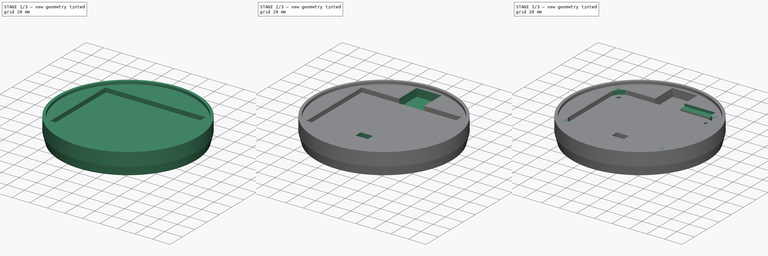
[diagram: build sequence overview — one tinted view per stage of 3, left to right]
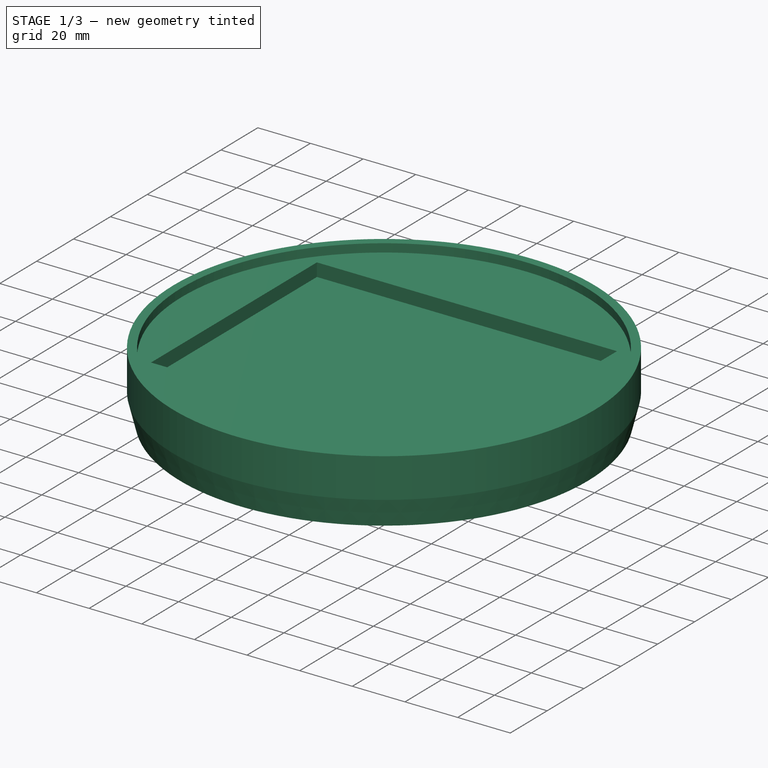
[diagram: stage 1 of 3 — iso view after this stage's code; geometry added in this stage tinted green]
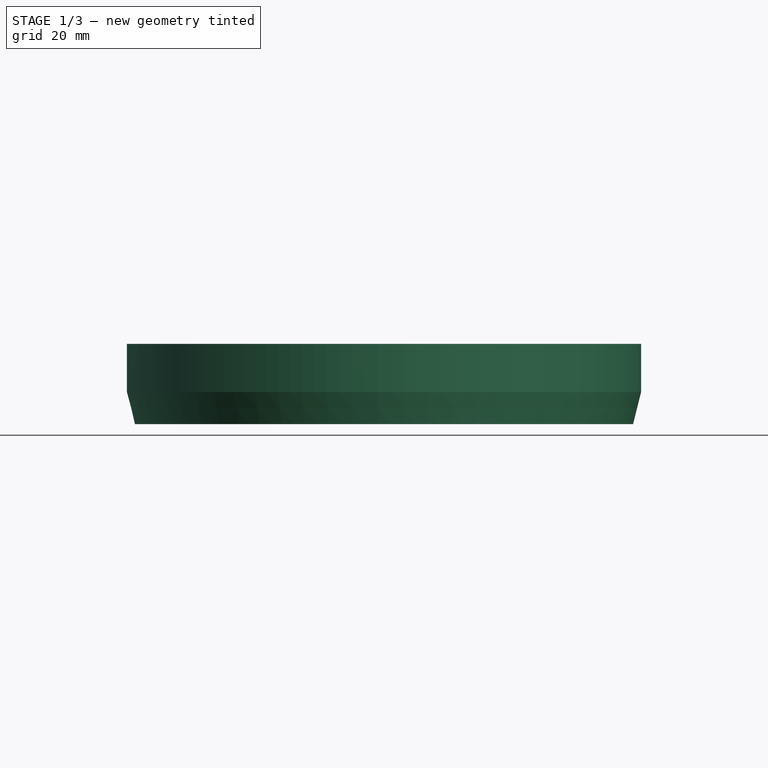
[diagram: stage 1 of 3 — front view after this stage's code; geometry added in this stage tinted green]
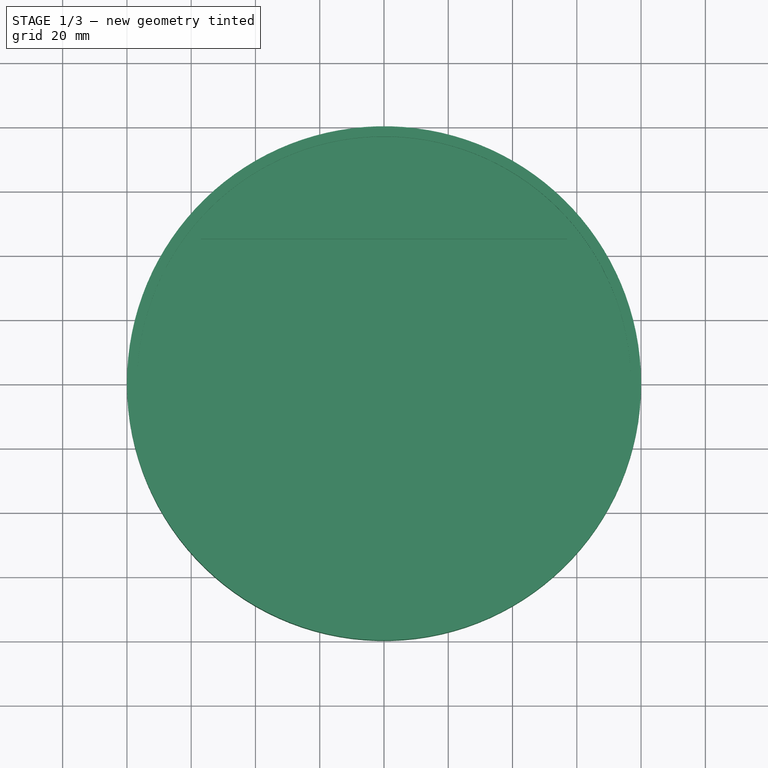
[diagram: stage 1 of 3 — top view after this stage's code; geometry added in this stage tinted green]
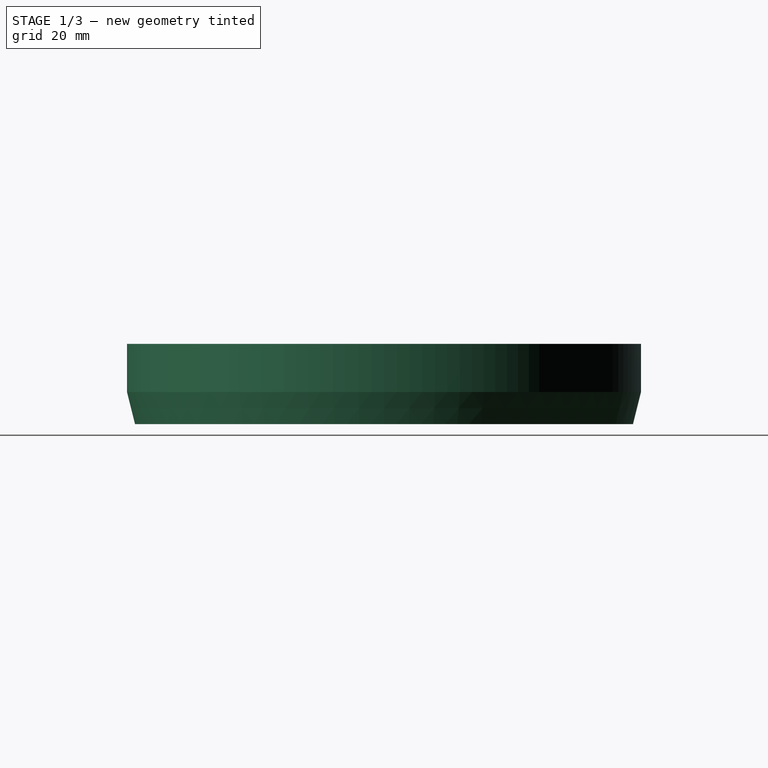
[diagram: stage 1 of 3 — right view after this stage's code; geometry added in this stage tinted green]
FCSTD DOCUMENT  (FreeCAD 0.19R24291 (Git))
Label: Buoy3DTop
License: All rights reserved
LicenseURL: http://en.wikipedia.org/wiki/All_rights_reserved
objects: Sketcher::SketchObject×7, PartDesign::Pocket×6, PartDesign::Revolution×1, PartDesign::Fillet×1, PartDesign::Body×1
note: 24 computed .brp shape members not serialized (recipe doc carries the construction recipe); baked Part::Feature solids carry a one-line shape summary decoded from their .brp

FEATURE [Sketcher::SketchObject] Sketch
  FullyConstrained = true
  MapMode = 5
  Placement = pos=(0,0,0) rot=(1,0,0;1.5708rad)
  Support = -> [XZ_Plane]
  sketch-geometry (8):
    g0: LineSegment StartX=0 StartY=5 StartZ=0 EndX=0 EndY=20 EndZ=0
    g1: LineSegment StartX=0 StartY=20 StartZ=0 EndX=80 EndY=20 EndZ=0
    g2: LineSegment StartX=80 StartY=20 StartZ=0 EndX=80 EndY=5 EndZ=0
    g3: LineSegment StartX=80 StartY=5 StartZ=0 EndX=77.5 EndY=-5 EndZ=0
    g4: LineSegment StartX=75.5 StartY=5 StartZ=0 EndX=0 EndY=5 EndZ=0
    g5: LineSegment StartX=75.5 StartY=0 StartZ=0 EndX=75.5 EndY=5 EndZ=0
    g6: LineSegment StartX=75.5 StartY=0 StartZ=0 EndX=75.5 EndY=-5 EndZ=0
    g7: LineSegment StartX=75.5 StartY=-5 StartZ=0 EndX=77.5 EndY=-5 EndZ=0
  constraints (24):
    c: PointOnObject(g0,g-2)
    c: PointOnObject(g0,g-2)
    c: Coincident(g0,g1)
    c: Horizontal(g1)
    c: Coincident(g1,g2)
    c: Vertical(g2)
    c: Coincident(g2,g3)
    c: Coincident(g4,g0)
    c: Horizontal(g4)
    c: DistanceX(g0,g1) = 80
    c: DistanceX(g5,g3) = 2
    c: Vertical(g5)
    c: Coincident(g4,g5)
    c: DistanceY(g5,g4) = 5
    c: DistanceY(g2,g1) = 15
    c: Coincident(g6,g5)
    c: Vertical(g6)
    c: Coincident(g7,g6)
    c: Horizontal(g7)
    c: Coincident(g3,g7)
    c: DistanceY(g-1,g5) = 0
    c: DistanceX(g3,g2) = 2.5
    c: DistanceY(g6,g5) = 5
    c: DistanceY(g5,g2) = 5
FEATURE [PartDesign::Revolution] Revolution
  Angle = 360
  Axis = (0,-2e-16,1)
  Base = (0,0,0)
  Placement = pos=(0,0,0) rot=(1,0,0;1.5708rad)
  Profile = -> Sketch
  ReferenceAxis = -> Sketch [V_Axis]
  Reversed = true
FEATURE [Sketcher::SketchObject] Sketch001
  FullyConstrained = true
  MapMode = 5
  Placement = pos=(0,-4.4e-15,20) rot=(0,0,1;3.14159rad)
  Support = -> [Revolution]
  sketch-geometry (1):
    g0: Circle CenterX=0 CenterY=0 CenterZ=0 NormalX=0 NormalY=0 NormalZ=1 AngleXU=0 Radius=76.835
  constraints (2):
    c: Coincident(g0,g-1)
    c: Radius(g0) = 76.835
FEATURE [PartDesign::Pocket] Pocket
  BaseFeature = -> Revolution
  Length = 3.175
  Length2 = 100
  Placement = pos=(0,0,0) rot=(1,0,0;1.5708rad)
  Profile = -> Sketch001
  Type = 0
FEATURE [Sketcher::SketchObject] Sketch002
  FullyConstrained = true
  MapMode = 5
  Placement = pos=(0,-3.6e-15,16.825) rot=(0,0,1;3.14159rad)
  Support = -> [Pocket]
  sketch-geometry (4):
    g0: LineSegment StartX=-57 StartY=45 StartZ=0 EndX=57 EndY=45 EndZ=0
    g1: LineSegment StartX=57 StartY=45 StartZ=0 EndX=57 EndY=-45 EndZ=0
    g2: LineSegment StartX=57 StartY=-45 StartZ=0 EndX=-57 EndY=-45 EndZ=0
    g3: LineSegment StartX=-57 StartY=-45 StartZ=0 EndX=-57 EndY=45 EndZ=0
  constraints (12):
    c: Horizontal(g0)
    c: Coincident(g0,g1)
    c: Vertical(g1)
    c: Coincident(g1,g2)
    c: Horizontal(g2)
    c: Coincident(g2,g3)
    c: Coincident(g3,g0)
    c: Vertical(g3)
    c: DistanceY(g1,g0) = 90
    c: DistanceX(g0,g0) = 114
    c: DistanceY(g1,g-1) = 45
    c: DistanceX(g-1,g0) = 57
FEATURE [PartDesign::Pocket] Pocket001
  BaseFeature = -> Pocket
  Length = 5
  Length2 = 100
  Placement = pos=(0,0,0) rot=(1,0,0;1.5708rad)
  Profile = -> Sketch002
  Type = 0
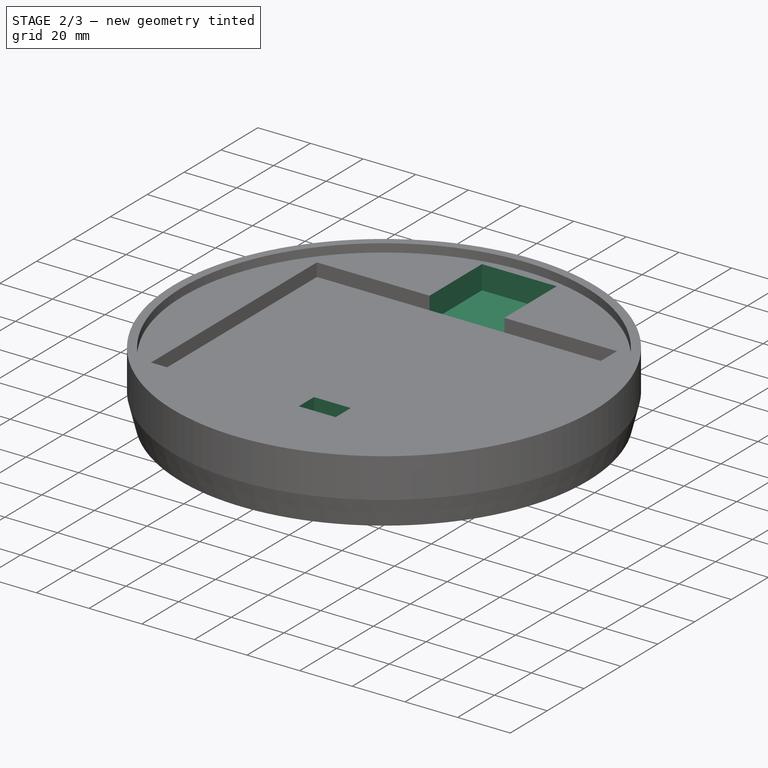
[diagram: stage 2 of 3 — iso view after this stage's code; geometry added in this stage tinted green]
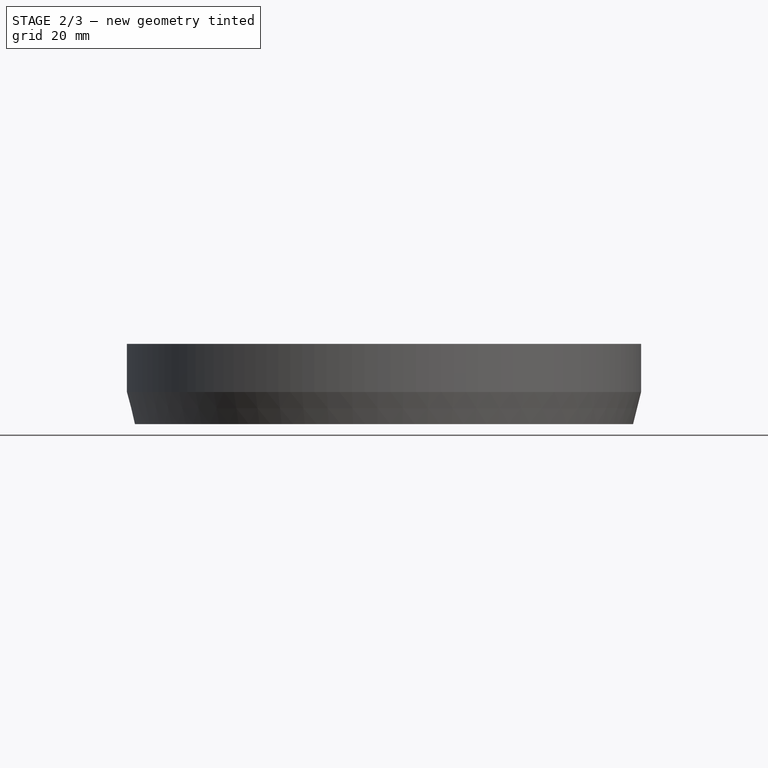
[diagram: stage 2 of 3 — front view after this stage's code; geometry added in this stage tinted green]
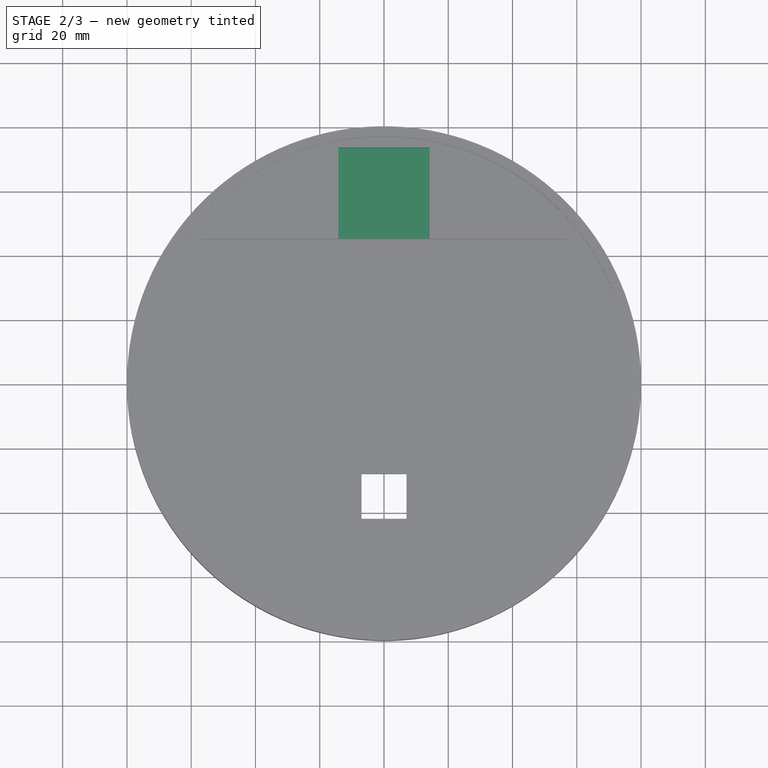
[diagram: stage 2 of 3 — top view after this stage's code; geometry added in this stage tinted green]
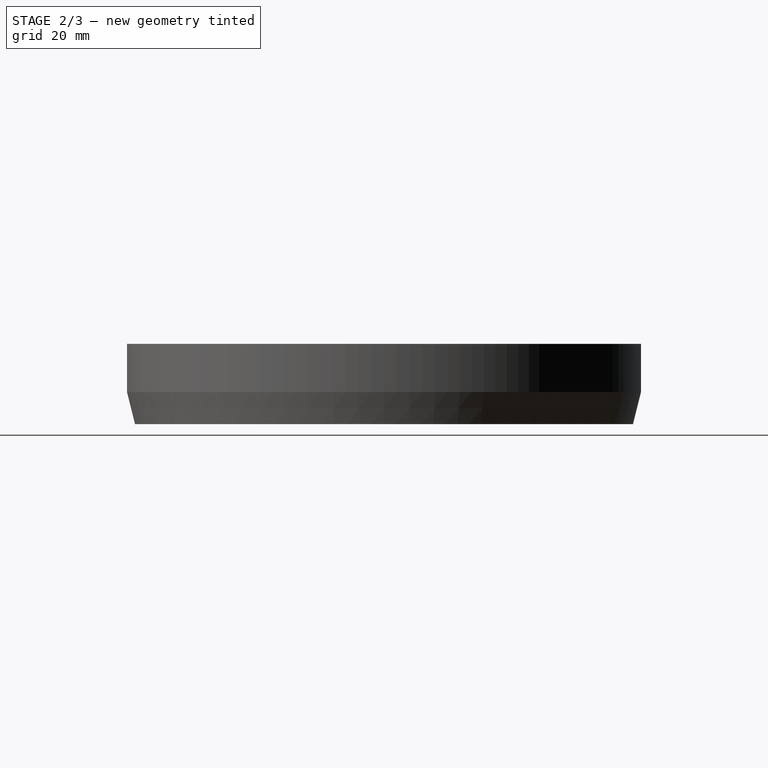
[diagram: stage 2 of 3 — right view after this stage's code; geometry added in this stage tinted green]
FEATURE [Sketcher::SketchObject] Sketch003
  FullyConstrained = true
  MapMode = 5
  Placement = pos=(0,-2.8e-15,11.825) rot=(0,0,1;3.14159rad)
  Support = -> [Pocket001]
  sketch-geometry (4):
    g0: LineSegment StartX=-7 StartY=42 StartZ=0 EndX=7 EndY=42 EndZ=0
    g1: LineSegment StartX=7 StartY=42 StartZ=0 EndX=7 EndY=28 EndZ=0
    g2: LineSegment StartX=7 StartY=28 StartZ=0 EndX=-7 EndY=28 EndZ=0
    g3: LineSegment StartX=-7 StartY=28 StartZ=0 EndX=-7 EndY=42 EndZ=0
  constraints (12):
    c: Coincident(g0,g1)
    c: Coincident(g1,g2)
    c: Coincident(g2,g3)
    c: Coincident(g3,g0)
    c: Horizontal(g0)
    c: Horizontal(g2)
    c: Vertical(g1)
    c: Vertical(g3)
    c: DistanceY(g-1,g0) = 42
    c: DistanceX(g2,g1) = 14
    c: DistanceY(g2,g0) = 14
    c: DistanceX(g-1,g1) = 7
FEATURE [PartDesign::Pocket] Pocket002
  BaseFeature = -> Pocket001
  Length = 5
  Length2 = 100
  Placement = pos=(0,0,0) rot=(1,0,0;1.5708rad)
  Profile = -> Sketch003
  Type = 1
FEATURE [Sketcher::SketchObject] Sketch004
  FullyConstrained = true
  MapMode = 5
  Placement = pos=(0,-3.6e-15,16.825) rot=(0,0,1;3.14159rad)
  Support = -> [Pocket002]
  sketch-geometry (4):
    g0: LineSegment StartX=-14.2 StartY=-45 StartZ=0 EndX=14.2 EndY=-45 EndZ=0
    g1: LineSegment StartX=14.2 StartY=-45 StartZ=0 EndX=14.2 EndY=-73.4 EndZ=0
    g2: LineSegment StartX=14.2 StartY=-73.4 StartZ=0 EndX=-14.2 EndY=-73.4 EndZ=0
    g3: LineSegment StartX=-14.2 StartY=-73.4 StartZ=0 EndX=-14.2 EndY=-45 EndZ=0
  constraints (12):
    c: Coincident(g0,g1)
    c: Coincident(g1,g2)
    c: Coincident(g2,g3)
    c: Coincident(g3,g0)
    c: Horizontal(g0)
    c: Horizontal(g2)
    c: Vertical(g1)
    c: Vertical(g3)
    c: DistanceY(g1,g0) = 28.4
    c: DistanceX(g0,g0) = 28.4
    c: DistanceX(g0,g-1) = 14.2
    c: DistanceY(g0,g-1) = 45
FEATURE [PartDesign::Pocket] Pocket003
  BaseFeature = -> Pocket002
  Length = 9
  Length2 = 100
  Placement = pos=(0,0,0) rot=(1,0,0;1.5708rad)
  Profile = -> Sketch004
  Type = 0
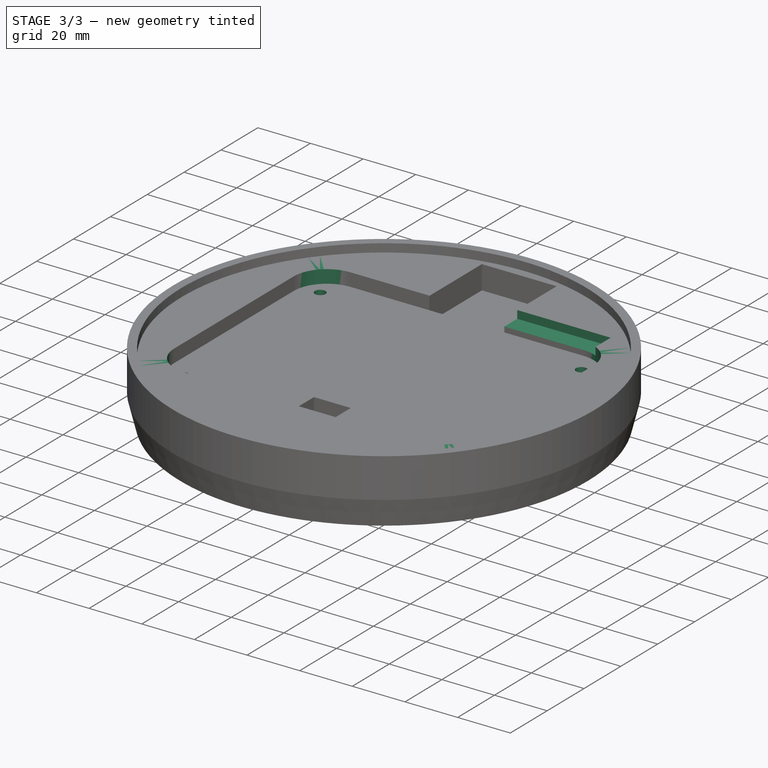
[diagram: stage 3 of 3 — iso view after this stage's code; geometry added in this stage tinted green]
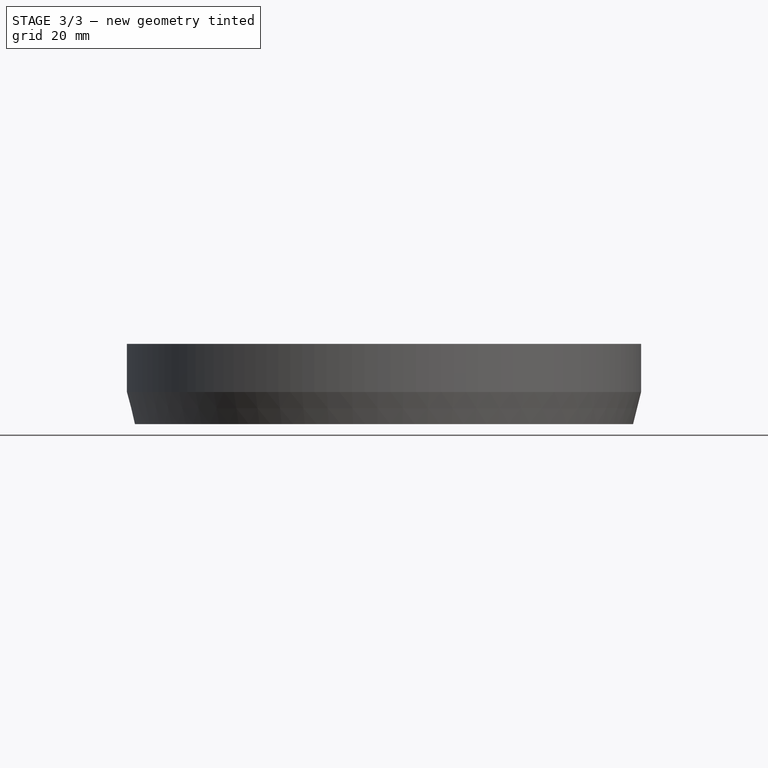
[diagram: stage 3 of 3 — front view after this stage's code; geometry added in this stage tinted green]
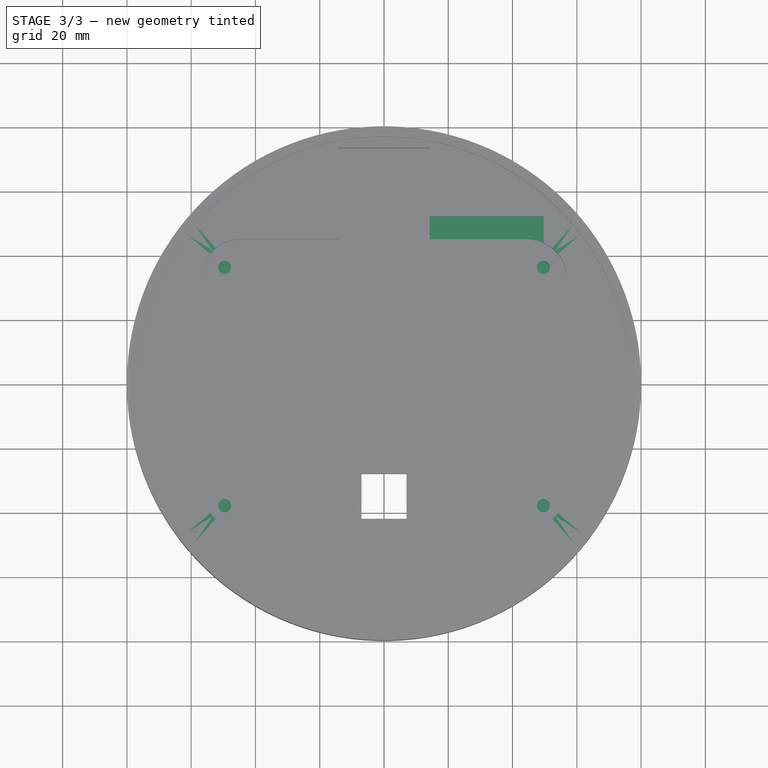
[diagram: stage 3 of 3 — top view after this stage's code; geometry added in this stage tinted green]
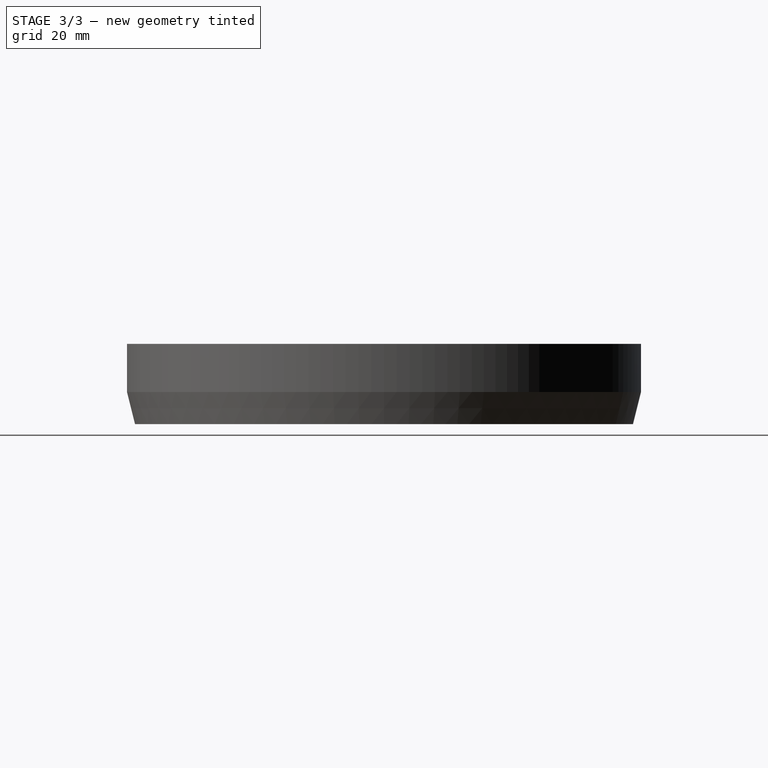
[diagram: stage 3 of 3 — right view after this stage's code; geometry added in this stage tinted green]
FEATURE [Sketcher::SketchObject] Sketch005
  FullyConstrained = true
  MapMode = 5
  Placement = pos=(0,-3.6e-15,16.825) rot=(0,0,1;3.14159rad)
  Support = -> [Pocket003]
  sketch-geometry (4):
    g0: LineSegment StartX=-49.7 StartY=-45 StartZ=0 EndX=-14.2 EndY=-45 EndZ=0
    g1: LineSegment StartX=-14.2 StartY=-45 StartZ=0 EndX=-14.2 EndY=-52 EndZ=0
    g2: LineSegment StartX=-14.2 StartY=-52 StartZ=0 EndX=-49.7 EndY=-52 EndZ=0
    g3: LineSegment StartX=-49.7 StartY=-52 StartZ=0 EndX=-49.7 EndY=-45 EndZ=0
  constraints (12):
    c: Coincident(g0,g1)
    c: Coincident(g1,g2)
    c: Coincident(g2,g3)
    c: Coincident(g3,g0)
    c: Horizontal(g0)
    c: Horizontal(g2)
    c: Vertical(g1)
    c: Vertical(g3)
    c: DistanceX(g0,g0) = 35.5
    c: DistanceY(g1,g0) = 7
    c: DistanceX(g1,g-1) = 14.2
    c: DistanceY(g0,g-1) = 45
FEATURE [PartDesign::Pocket] Pocket004
  BaseFeature = -> Pocket003
  Length = 3
  Length2 = 100
  Placement = pos=(0,0,0) rot=(1,0,0;1.5708rad)
  Profile = -> Sketch005
  Type = 0
FEATURE [PartDesign::Fillet] Fillet
  Base = -> Pocket004 [Edge39,Edge41,Edge37,Edge36]
  BaseFeature = -> Pocket004
  Placement = pos=(0,0,0) rot=(1,0,0;1.5708rad)
  Radius = 12.7
  SupportTransform = false
FEATURE [Sketcher::SketchObject] Sketch006
  FullyConstrained = true
  MapMode = 5
  Placement = pos=(0,-2.8e-15,11.825) rot=(0,0,1;3.14159rad)
  Support = -> [Fillet]
  sketch-geometry (4):
    g0: Circle CenterX=-49.6 CenterY=38 CenterZ=0 NormalX=0 NormalY=0 NormalZ=1 AngleXU=0 Radius=2
    g1: Circle CenterX=49.6 CenterY=38 CenterZ=0 NormalX=0 NormalY=0 NormalZ=1 AngleXU=0 Radius=2
    g2: Circle CenterX=-49.6 CenterY=-36.2 CenterZ=0 NormalX=0 NormalY=0 NormalZ=1 AngleXU=0 Radius=2
    g3: Circle CenterX=49.6 CenterY=-36.2 CenterZ=0 NormalX=0 NormalY=0 NormalZ=1 AngleXU=0 Radius=2
  constraints (12):
    c: DistanceX(g2,g-1) = 49.6
    c: DistanceX(g2,g0) = 0
    c: DistanceY(g2,g0) = 74.2
    c: Radius(g3) = 2
    c: Equal(g3,g1)
    c: Equal(g3,g0)
    c: Equal(g3,g2)
    c: DistanceY(g1,g0) = 0
    c: DistanceX(g1,g3) = 0
    c: DistanceY(g2,g3) = 0
    c: DistanceX(g-1,g3) = 49.6
    c: DistanceY(g-1,g0) = 38
FEATURE [PartDesign::Pocket] Pocket005
  BaseFeature = -> Fillet
  Length = 5
  Length2 = 100
  Placement = pos=(0,0,0) rot=(1,0,0;1.5708rad)
  Profile = -> Sketch006
  Type = 0
FEATURE [PartDesign::Body] Body
  Group = -> [Sketch,Revolution,Sketch001,Pocket,Sketch002,Pocket001,Sketch003,Pocket002,Sketch004,Pocket003,Sketch005,Pocket004,Fillet,Sketch006,Pocket005]
  Origin = -> Origin
  Tip = -> Pocket005
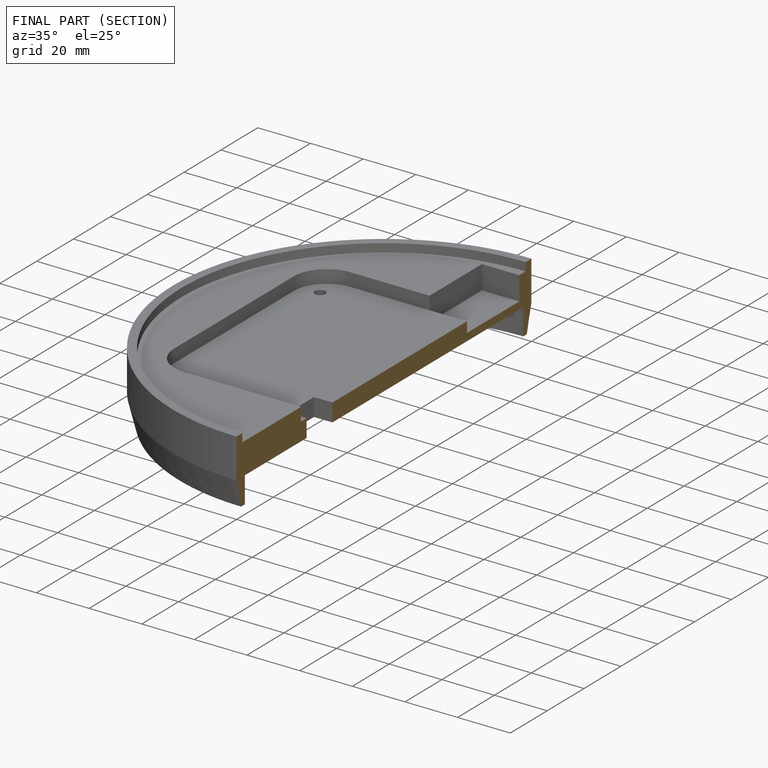
[diagram: finished part — half-section view (interior)]
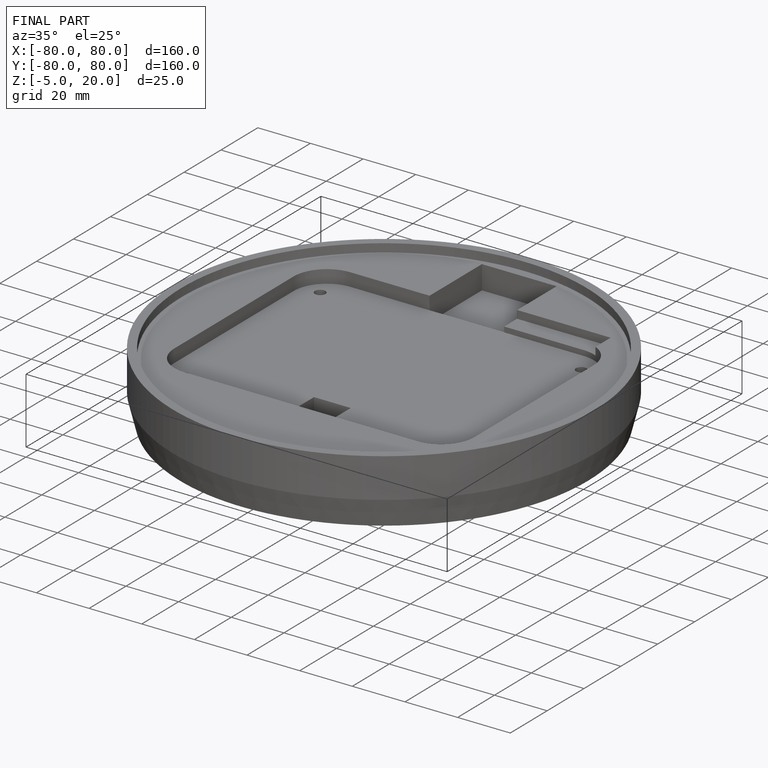
[diagram: finished part — iso view with bounding-box wireframe]
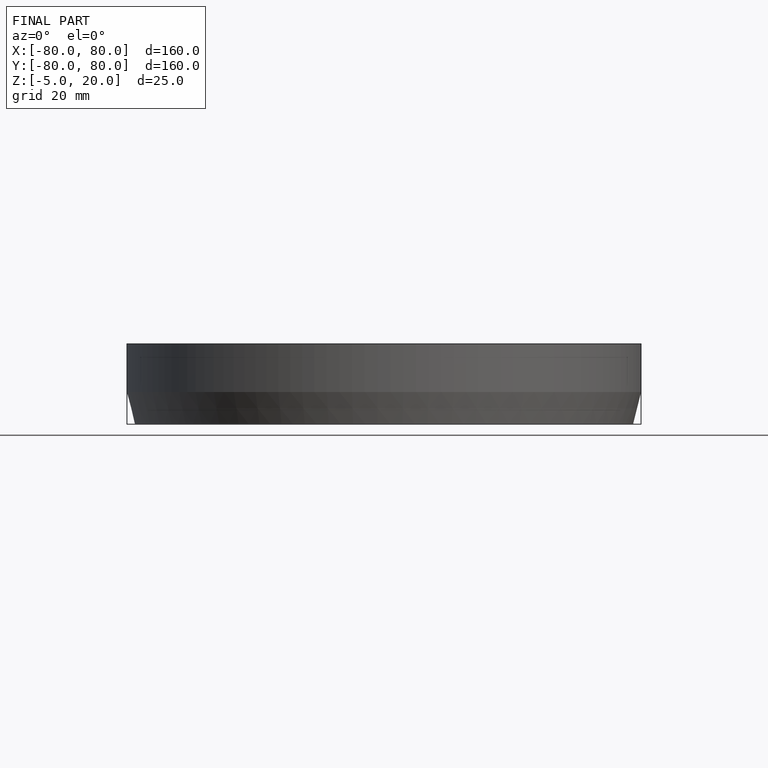
[diagram: finished part — front view with bounding-box wireframe]
